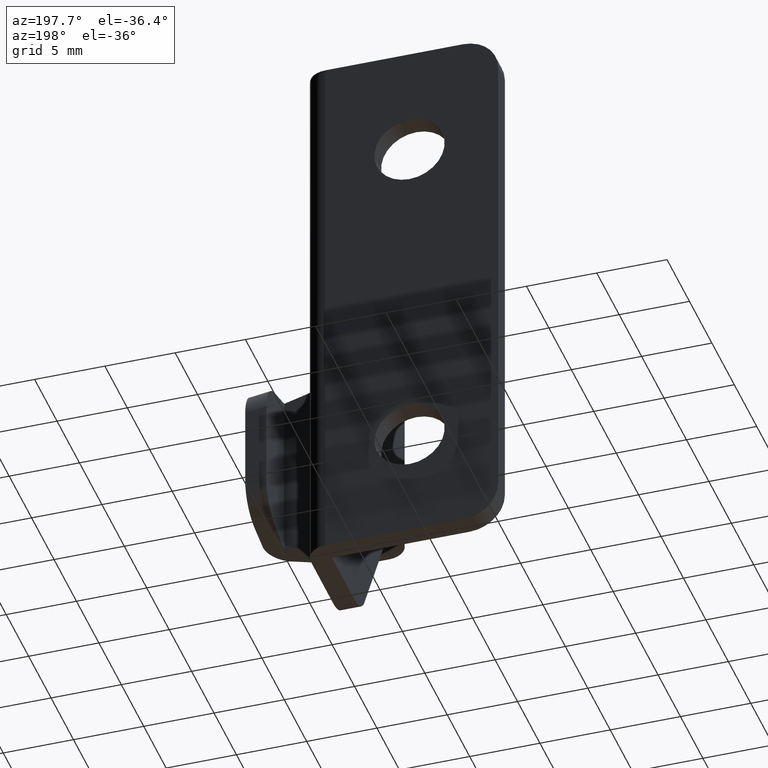
[diagram: clean part render]
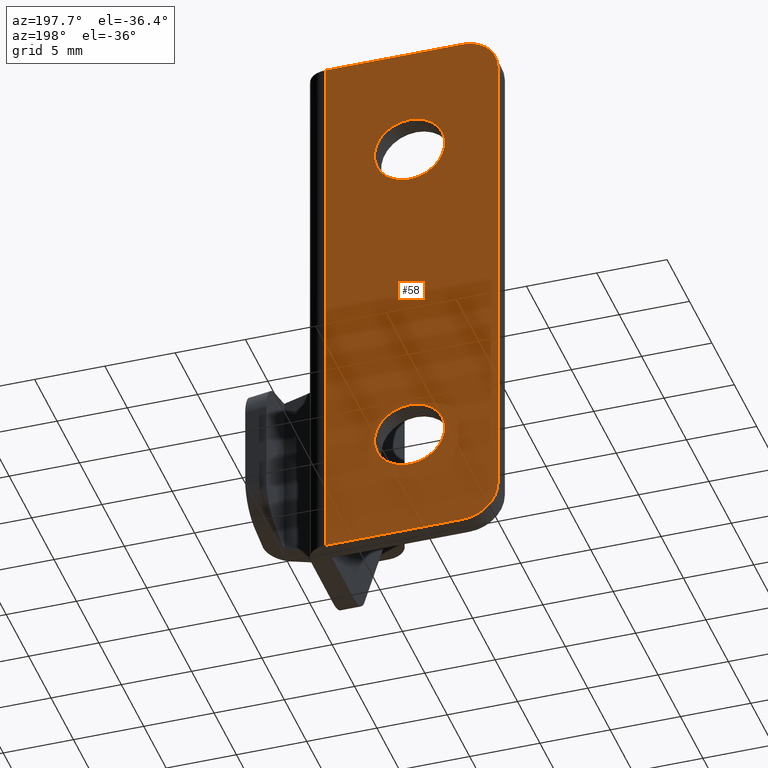
[diagram: same view with one face highlighted and labeled with its STEP entity id]
A machine part, auxiliary view. The second image highlights one B-rep face of the part: STEP entity #58.
In plain terms, the highlighted planar face has unit normal (0, -1, 0).
Its self-contained STEP definition (entity closure, byte-faithful):
#58=ADVANCED_FACE('',(#256,#257,#258),#255,.F.);
#255=PLANE('',#510);
#256=FACE_OUTER_BOUND('',#511,.T.);
#257=FACE_BOUND('',#512,.T.);
#258=FACE_BOUND('',#513,.T.);
#507=CARTESIAN_POINT('',(-1.22999880000E+00,0.00000000000E+00,2.40000000000E+01));
#508=DIRECTION('',(0.00000000000E+00,-1.00000000000E+00,0.00000000000E+00));
#509=DIRECTION('',(0.00000000000E+00,0.00000000000E+00,-1.00000000000E+00));
#510=AXIS2_PLACEMENT_3D('',#507,#508,#509);
#511=EDGE_LOOP('',(#691,#692,#693,#694,#695,#696));
#512=EDGE_LOOP('',(#697,#698));
#513=EDGE_LOOP('',(#699,#700));
#691=ORIENTED_EDGE('',*,*,#839,.T.);
#692=ORIENTED_EDGE('',*,*,#791,.T.);
#693=ORIENTED_EDGE('',*,*,#837,.F.);
#694=ORIENTED_EDGE('',*,*,#827,.F.);
#695=ORIENTED_EDGE('',*,*,#830,.T.);
#696=ORIENTED_EDGE('',*,*,#832,.F.);
#697=ORIENTED_EDGE('',*,*,#840,.T.);
#698=ORIENTED_EDGE('',*,*,#841,.T.);
#699=ORIENTED_EDGE('',*,*,#842,.T.);
#700=ORIENTED_EDGE('',*,*,#843,.T.);
#791=EDGE_CURVE('',#986,#1000,#1007,.T.);
#827=EDGE_CURVE('',#1240,#1247,#1248,.T.);
#830=EDGE_CURVE('',#1240,#1260,#1267,.T.);
#832=EDGE_CURVE('',#1273,#1260,#1280,.T.);
#837=EDGE_CURVE('',#1247,#1000,#1312,.T.);
#839=EDGE_CURVE('',#1273,#986,#1324,.T.);
#840=EDGE_CURVE('',#1330,#1331,#1332,.T.);
#841=EDGE_CURVE('',#1331,#1330,#1338,.T.);
#842=EDGE_CURVE('',#1344,#1345,#1346,.T.);
#843=EDGE_CURVE('',#1345,#1344,#1352,.T.);
#986=VERTEX_POINT('',#1562);
#1000=VERTEX_POINT('',#1571);
#1007=LINE('',#1576,#1577);
#1240=VERTEX_POINT('',#1727);
#1247=VERTEX_POINT('',#1731);
#1248=CIRCLE('',#1735,2.50000000000E+00);
#1260=VERTEX_POINT('',#1739);
#1267=LINE('',#1743,#1744);
#1273=VERTEX_POINT('',#1746);
#1280=CIRCLE('',#1753,2.50000000000E+00);
#1312=LINE('',#1769,#1770);
#1324=LINE('',#1775,#1776);
#1330=VERTEX_POINT('',#1778);
#1331=VERTEX_POINT('',#1779);
#1332=CIRCLE('',#1783,2.50000000000E+00);
#1338=CIRCLE('',#1787,2.50000000000E+00);
#1344=VERTEX_POINT('',#1788);
#1345=VERTEX_POINT('',#1789);
#1346=CIRCLE('',#1793,2.50000000000E+00);
#1352=CIRCLE('',#1797,2.50000000000E+00);
#1562=CARTESIAN_POINT('',(1.22999880000E+01,0.00000000000E+00,2.00000000000E+01));
#1571=CARTESIAN_POINT('',(1.22999880000E+01,0.00000000000E+00,-2.00000000000E+01));
#1576=CARTESIAN_POINT('',(1.22999880000E+01,0.00000000000E+00,2.00000000000E+01));
#1577=VECTOR('',#1578,4.00000000000E+01);
#1578=DIRECTION('',(0.00000000000E+00,0.00000000000E+00,-1.00000000000E+00));
#1727=CARTESIAN_POINT('',(0.00000000000E+00,0.00000000000E+00,-1.75000000000E+01));
#1731=CARTESIAN_POINT('',(2.50000000000E+00,0.00000000000E+00,-2.00000000000E+01));
#1732=CARTESIAN_POINT('',(2.50000000000E+00,0.00000000000E+00,-1.75000000000E+01));
#1733=DIRECTION('',(0.00000000000E+00,-1.00000000000E+00,0.00000000000E+00));
#1734=DIRECTION('',(-0.00000000000E+00,-0.00000000000E+00,1.00000000000E+00));
#1735=AXIS2_PLACEMENT_3D('',#1732,#1733,#1734);
#1739=CARTESIAN_POINT('',(0.00000000000E+00,0.00000000000E+00,1.75000000000E+01));
#1743=CARTESIAN_POINT('',(0.00000000000E+00,0.00000000000E+00,-1.75000000000E+01));
#1744=VECTOR('',#1745,3.50000000000E+01);
#1745=DIRECTION('',(0.00000000000E+00,0.00000000000E+00,1.00000000000E+00));
#1746=CARTESIAN_POINT('',(2.50000000000E+00,0.00000000000E+00,2.00000000000E+01));
#1750=CARTESIAN_POINT('',(2.50000000000E+00,0.00000000000E+00,1.75000000000E+01));
#1751=DIRECTION('',(0.00000000000E+00,-1.00000000000E+00,0.00000000000E+00));
#1752=DIRECTION('',(-0.00000000000E+00,-0.00000000000E+00,1.00000000000E+00));
#1753=AXIS2_PLACEMENT_3D('',#1750,#1751,#1752);
#1769=CARTESIAN_POINT('',(2.50000000000E+00,0.00000000000E+00,-2.00000000000E+01));
#1770=VECTOR('',#1771,9.79998800000E+00);
#1771=DIRECTION('',(1.00000000000E+00,0.00000000000E+00,0.00000000000E+00));
#1775=CARTESIAN_POINT('',(2.50000000000E+00,0.00000000000E+00,2.00000000000E+01));
#1776=VECTOR('',#1777,9.79998800000E+00);
#1777=DIRECTION('',(1.00000000000E+00,0.00000000000E+00,0.00000000000E+00));
#1778=CARTESIAN_POINT('',(6.29998800000E+00,0.00000000000E+00,9.50000000000E+00));
#1779=CARTESIAN_POINT('',(6.29998800000E+00,0.00000000000E+00,1.45000000000E+01));
#1780=CARTESIAN_POINT('',(6.29998800000E+00,0.00000000000E+00,1.20000000000E+01));
#1781=DIRECTION('',(0.00000000000E+00,-1.00000000000E+00,-0.00000000000E+00));
#1782=DIRECTION('',(-1.22460635382E-16,0.00000000000E+00,-1.00000000000E+00));
#1783=AXIS2_PLACEMENT_3D('',#1780,#1781,#1782);
#1784=CARTESIAN_POINT('',(6.29998800000E+00,0.00000000000E+00,1.20000000000E+01));
#1785=DIRECTION('',(0.00000000000E+00,-1.00000000000E+00,-0.00000000000E+00));
#1786=DIRECTION('',(-1.22460635382E-16,0.00000000000E+00,-1.00000000000E+00));
#1787=AXIS2_PLACEMENT_3D('',#1784,#1785,#1786);
#1788=CARTESIAN_POINT('',(6.29998800000E+00,0.00000000000E+00,-1.45000000000E+01));
#1789=CARTESIAN_POINT('',(6.29998800000E+00,0.00000000000E+00,-9.50000000000E+00));
#1790=CARTESIAN_POINT('',(6.29998800000E+00,0.00000000000E+00,-1.20000000000E+01));
#1791=DIRECTION('',(0.00000000000E+00,-1.00000000000E+00,-0.00000000000E+00));
#1792=DIRECTION('',(-1.22460635382E-16,0.00000000000E+00,-1.00000000000E+00));
#1793=AXIS2_PLACEMENT_3D('',#1790,#1791,#1792);
#1794=CARTESIAN_POINT('',(6.29998800000E+00,0.00000000000E+00,-1.20000000000E+01));
#1795=DIRECTION('',(0.00000000000E+00,-1.00000000000E+00,-0.00000000000E+00));
#1796=DIRECTION('',(-1.22460635382E-16,0.00000000000E+00,-1.00000000000E+00));
#1797=AXIS2_PLACEMENT_3D('',#1794,#1795,#1796);